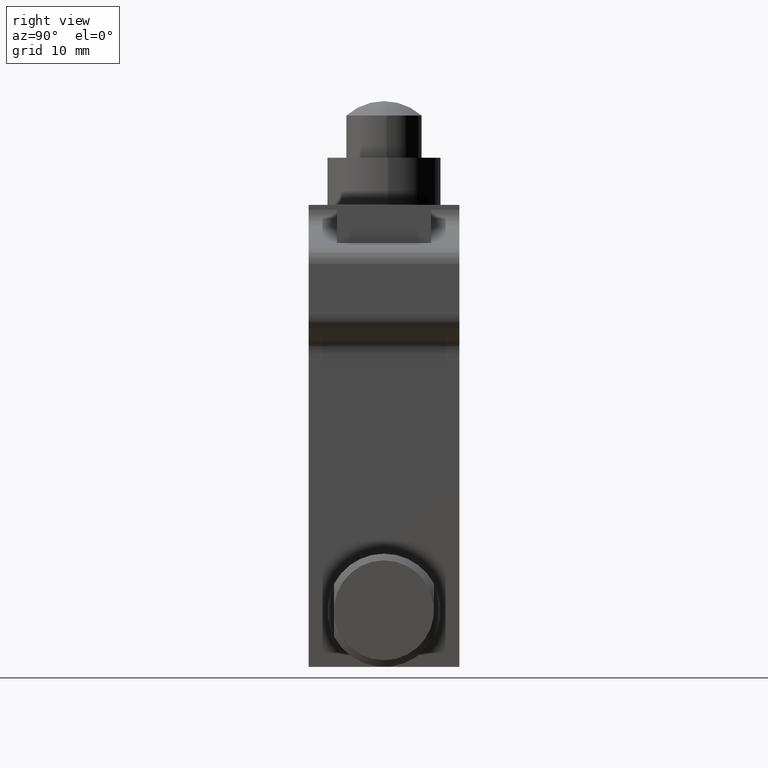
[diagram: clean part render]
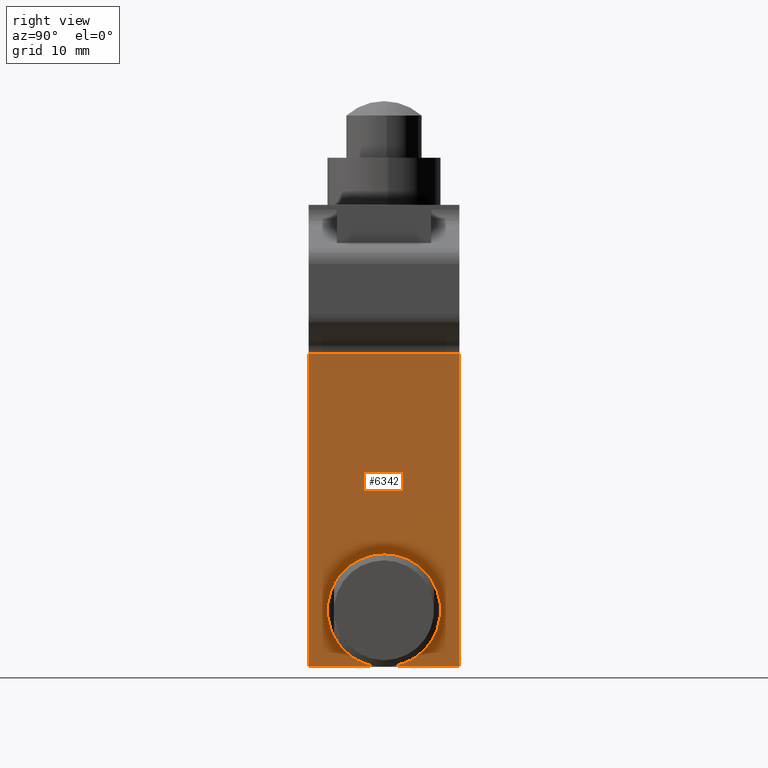
[diagram: same view with one face highlighted and labeled with its STEP entity id]
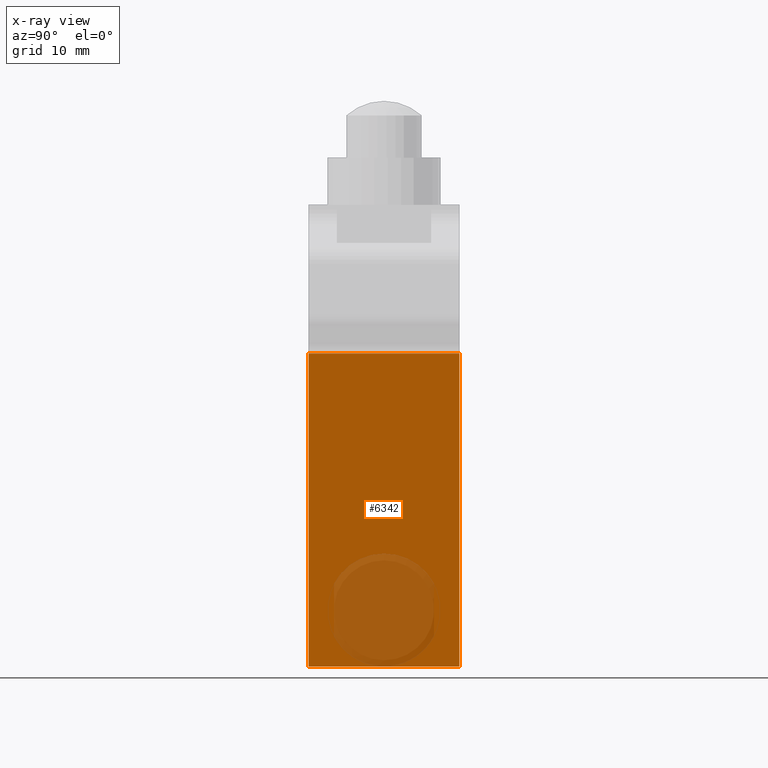
[diagram: x-ray of the same camera — body ghosted, the highlighted face saturated]
A machine part, right view. The second image highlights one B-rep face of the part: STEP entity #6342.
The next image is the same camera in x-ray: the body ghosted, the highlighted face saturated — about 20% of this face is hidden behind the body in this view.
In plain terms, the highlighted planar face has unit normal (1, 0, 0).
Its self-contained STEP definition (entity closure, byte-faithful):
#146 = EDGE_CURVE ( 'NONE', #4250, #5285, #7041, .T. ) ;
#359 = VECTOR ( 'NONE', #7072, 39.37007874015748143 ) ;
#464 = ORIENTED_EDGE ( 'NONE', *, *, #146, .F. ) ;
#568 = CARTESIAN_POINT ( 'NONE',  ( 0.5905511811023621549, -0.6299212598425196763, -1.574803149606299302 ) ) ;
#766 = LINE ( 'NONE', #7640, #359 ) ;
#928 = VERTEX_POINT ( 'NONE', #4014 ) ;
#1071 = DIRECTION ( 'NONE',  ( 0.0000000000000000000, 0.0000000000000000000, 1.000000000000000000 ) ) ;
#1163 = DIRECTION ( 'NONE',  ( 0.0000000000000000000, 1.000000000000000000, 0.0000000000000000000 ) ) ;
#1479 = VECTOR ( 'NONE', #1071, 39.37007874015748143 ) ;
#1784 = VECTOR ( 'NONE', #4748, 39.37007874015748143 ) ;
#1956 = CARTESIAN_POINT ( 'NONE',  ( 0.5905511811023621549, -2.797412204724409697E-16, -0.2668672096356763945 ) ) ;
#2295 = DIRECTION ( 'NONE',  ( 1.000000000000000000, 0.0000000000000000000, 0.0000000000000000000 ) ) ;
#2322 = DIRECTION ( 'NONE',  ( 0.0000000000000000000, 0.0000000000000000000, -1.000000000000000000 ) ) ;
#2482 = VERTEX_POINT ( 'NONE', #1956 ) ;
#2824 = CARTESIAN_POINT ( 'NONE',  ( 0.5905511811023621549, -2.797412204724409697E-16, -1.574803149606299302 ) ) ;
#2874 = EDGE_LOOP ( 'NONE', ( #4544, #4856, #464, #7734 ) ) ;
#3062 = CARTESIAN_POINT ( 'NONE',  ( 0.5905511811023621549, -2.797412204724409697E-16, -1.574803149606299302 ) ) ;
#3798 = CARTESIAN_POINT ( 'NONE',  ( 0.5905511811023621549, -2.797412204724409697E-16, -1.574803149606299302 ) ) ;
#4014 = CARTESIAN_POINT ( 'NONE',  ( 0.5905511811023621549, -0.6299212598425196763, -0.2668672096356763945 ) ) ;
#4107 = AXIS2_PLACEMENT_3D ( 'NONE', #5999, #2295, #2322 ) ;
#4250 = VERTEX_POINT ( 'NONE', #3798 ) ;
#4544 = ORIENTED_EDGE ( 'NONE', *, *, #7562, .F. ) ;
#4704 = FACE_OUTER_BOUND ( 'NONE', #2874, .T. ) ;
#4748 = DIRECTION ( 'NONE',  ( 0.0000000000000000000, -1.000000000000000000, 0.0000000000000000000 ) ) ;
#4856 = ORIENTED_EDGE ( 'NONE', *, *, #4868, .T. ) ;
#4868 = EDGE_CURVE ( 'NONE', #928, #5285, #766, .T. ) ;
#4986 = CARTESIAN_POINT ( 'NONE',  ( 0.5905511811023621549, -0.6299212598425196763, -0.2668672096356763945 ) ) ;
#5285 = VERTEX_POINT ( 'NONE', #568 ) ;
#5352 = PLANE ( 'NONE',  #4107 ) ;
#5544 = VECTOR ( 'NONE', #1163, 39.37007874015748143 ) ;
#5681 = EDGE_CURVE ( 'NONE', #4250, #2482, #6190, .T. ) ;
#5999 = CARTESIAN_POINT ( 'NONE',  ( 0.5905511811023621549, -2.797412204724409697E-16, 0.3543307086614173040 ) ) ;
#6190 = LINE ( 'NONE', #3062, #1479 ) ;
#6342 = ADVANCED_FACE ( 'NONE', ( #4704 ), #5352, .T. ) ;
#7041 = LINE ( 'NONE', #2824, #1784 ) ;
#7072 = DIRECTION ( 'NONE',  ( 0.0000000000000000000, 0.0000000000000000000, -1.000000000000000000 ) ) ;
#7463 = LINE ( 'NONE', #4986, #5544 ) ;
#7562 = EDGE_CURVE ( 'NONE', #928, #2482, #7463, .T. ) ;
#7640 = CARTESIAN_POINT ( 'NONE',  ( 0.5905511811023621549, -0.6299212598425196763, -0.2668672096356763945 ) ) ;
#7734 = ORIENTED_EDGE ( 'NONE', *, *, #5681, .T. ) ;